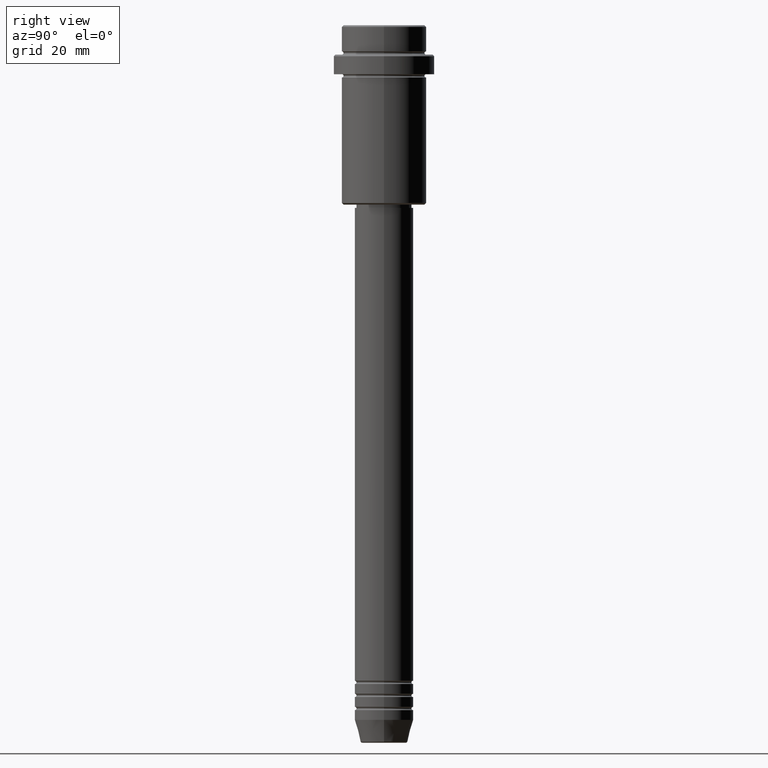
[diagram: clean part render]
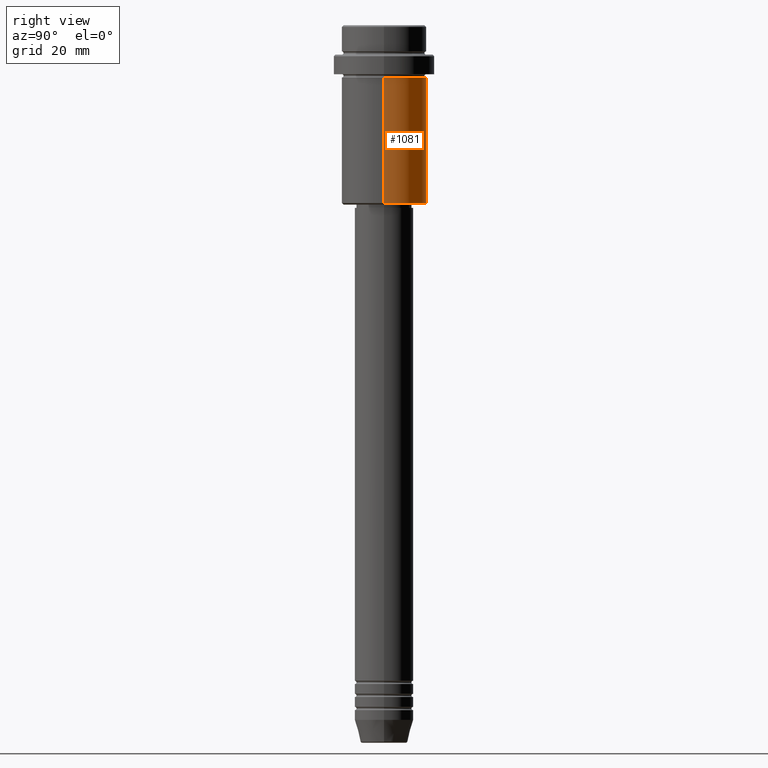
[diagram: same view with one face highlighted and labeled with its STEP entity id]
A machine part, right view. The second image highlights one B-rep face of the part: STEP entity #1081.
In plain terms, the highlighted cylindrical surface (partial cylindrical patch) has radius 13 mm, axis along (-0, -0, 1).
Its self-contained STEP definition (entity closure, byte-faithful):
#7 = ORIENTED_EDGE ( 'NONE', *, *, #266, .T. ) ;
#44 = CARTESIAN_POINT ( 'NONE',  ( -13.00000000000000000, 1.592040838891559095E-15, -54.50000000000002132 ) ) ;
#59 = DIRECTION ( 'NONE',  ( -1.000000000000000000, 0.000000000000000000, 0.000000000000000000 ) ) ;
#69 = CARTESIAN_POINT ( 'NONE',  ( -13.00000000000000000, 1.592040838891559095E-15, -16.00000000000000000 ) ) ;
#90 = CARTESIAN_POINT ( 'NONE',  ( 0.000000000000000000, 0.000000000000000000, 0.000000000000000000 ) ) ;
#133 = DIRECTION ( 'NONE',  ( -0.000000000000000000, -0.000000000000000000, 1.000000000000000000 ) ) ;
#145 = VECTOR ( 'NONE', #133, 1000.000000000000000 ) ;
#266 = EDGE_CURVE ( 'NONE', #309, #498, #1189, .T. ) ;
#309 = VERTEX_POINT ( 'NONE', #669 ) ;
#328 = VERTEX_POINT ( 'NONE', #461 ) ;
#377 = AXIS2_PLACEMENT_3D ( 'NONE', #615, #1056, #59 ) ;
#391 = EDGE_CURVE ( 'NONE', #328, #609, #1218, .T. ) ;
#435 = EDGE_CURVE ( 'NONE', #498, #609, #708, .T. ) ;
#461 = CARTESIAN_POINT ( 'NONE',  ( 13.00000000000000000, 0.000000000000000000, -16.00000000000000000 ) ) ;
#469 = ORIENTED_EDGE ( 'NONE', *, *, #391, .F. ) ;
#498 = VERTEX_POINT ( 'NONE', #44 ) ;
#520 = DIRECTION ( 'NONE',  ( -0.000000000000000000, -0.000000000000000000, 1.000000000000000000 ) ) ;
#542 = CARTESIAN_POINT ( 'NONE',  ( 0.000000000000000000, 0.000000000000000000, -16.00000000000000000 ) ) ;
#564 = EDGE_LOOP ( 'NONE', ( #7, #1363, #469, #755 ) ) ;
#609 = VERTEX_POINT ( 'NONE', #69 ) ;
#613 = AXIS2_PLACEMENT_3D ( 'NONE', #542, #1117, #1326 ) ;
#615 = CARTESIAN_POINT ( 'NONE',  ( 0.000000000000000000, 0.000000000000000000, -54.50000000000002132 ) ) ;
#648 = CYLINDRICAL_SURFACE ( 'NONE', #1082, 13.00000000000000000 ) ;
#652 = EDGE_CURVE ( 'NONE', #309, #328, #1412, .T. ) ;
#669 = CARTESIAN_POINT ( 'NONE',  ( 13.00000000000000000, 0.000000000000000000, -54.50000000000002132 ) ) ;
#694 = CARTESIAN_POINT ( 'NONE',  ( -13.00000000000000000, 1.592040838891559095E-15, 0.000000000000000000 ) ) ;
#708 = LINE ( 'NONE', #694, #145 ) ;
#755 = ORIENTED_EDGE ( 'NONE', *, *, #652, .F. ) ;
#866 = VECTOR ( 'NONE', #520, 1000.000000000000000 ) ;
#1056 = DIRECTION ( 'NONE',  ( -0.000000000000000000, -0.000000000000000000, 1.000000000000000000 ) ) ;
#1065 = FACE_OUTER_BOUND ( 'NONE', #564, .T. ) ;
#1070 = DIRECTION ( 'NONE',  ( -0.000000000000000000, -0.000000000000000000, 1.000000000000000000 ) ) ;
#1081 = ADVANCED_FACE ( 'NONE', ( #1065 ), #648, .T. ) ;
#1082 = AXIS2_PLACEMENT_3D ( 'NONE', #90, #1070, #1294 ) ;
#1117 = DIRECTION ( 'NONE',  ( -0.000000000000000000, -0.000000000000000000, 1.000000000000000000 ) ) ;
#1189 = CIRCLE ( 'NONE', #377, 13.00000000000000000 ) ;
#1218 = CIRCLE ( 'NONE', #613, 13.00000000000000000 ) ;
#1283 = CARTESIAN_POINT ( 'NONE',  ( 13.00000000000000000, 0.000000000000000000, 0.000000000000000000 ) ) ;
#1294 = DIRECTION ( 'NONE',  ( 1.000000000000000000, 0.000000000000000000, 0.000000000000000000 ) ) ;
#1326 = DIRECTION ( 'NONE',  ( 1.000000000000000000, 0.000000000000000000, 0.000000000000000000 ) ) ;
#1363 = ORIENTED_EDGE ( 'NONE', *, *, #435, .T. ) ;
#1412 = LINE ( 'NONE', #1283, #866 ) ;